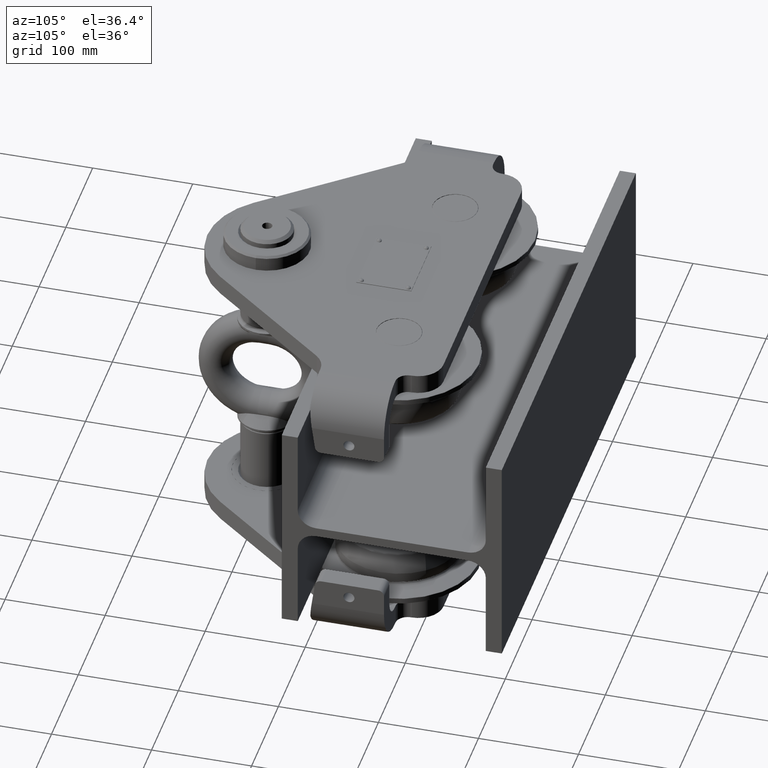
[diagram: clean part render]
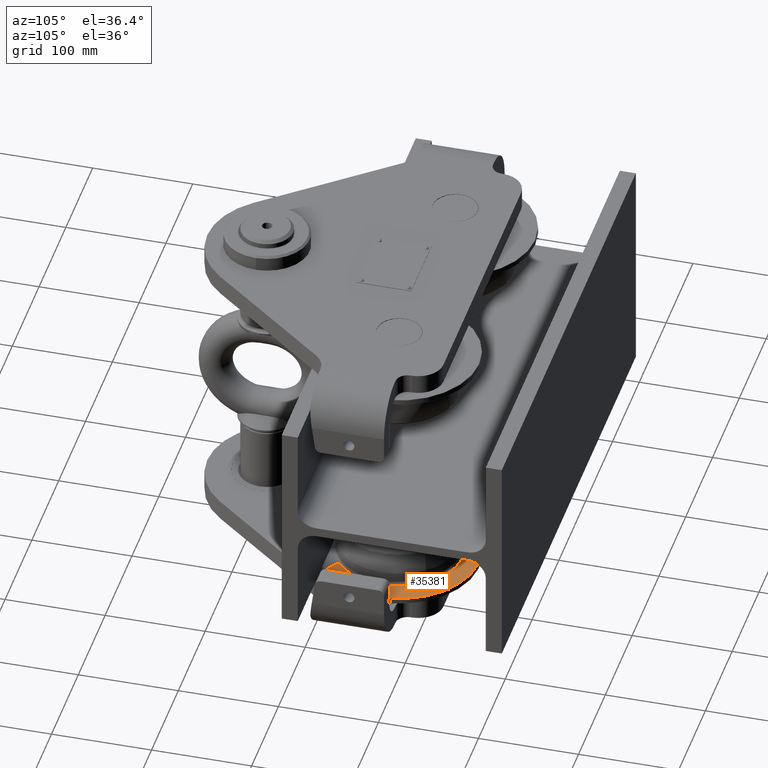
[diagram: same view with one face highlighted and labeled with its STEP entity id]
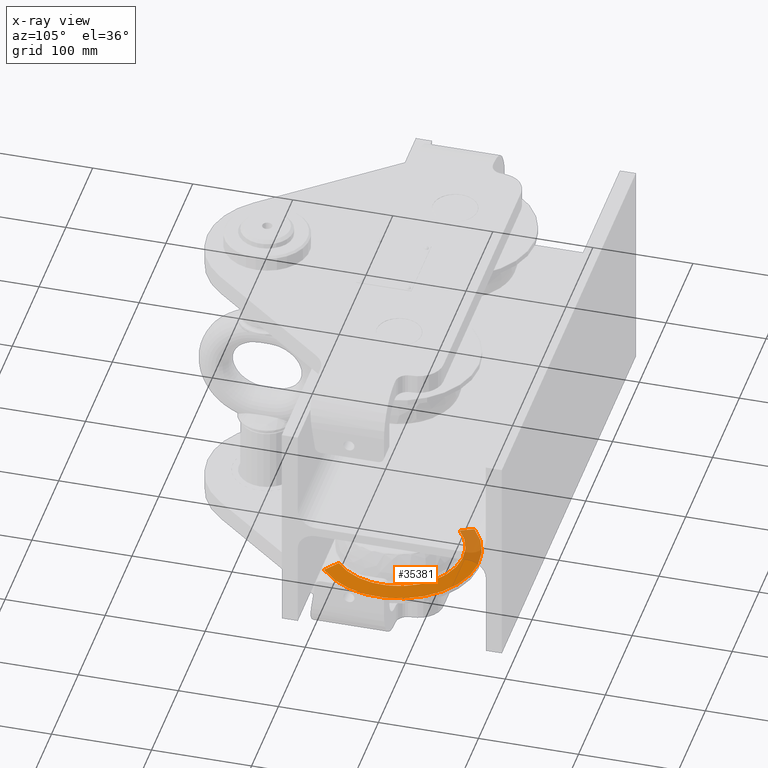
[diagram: x-ray of the same camera — body ghosted, the highlighted face saturated]
A machine part, auxiliary view. The second image highlights one B-rep face of the part: STEP entity #35381.
The next image is the same camera in x-ray: the body ghosted, the highlighted face saturated — about 20% of this face is hidden behind the body in this view.
In plain terms, the highlighted conical surface has half-angle 78 deg.
Its self-contained STEP definition (entity closure, byte-faithful):
#1878 = LINE ( 'NONE', #33968, #7999 ) ;
#4599 = CARTESIAN_POINT ( 'NONE',  ( 104.5000000000000900, -31.49999999999995000, -115.9597846072440200 ) ) ;
#5742 = AXIS2_PLACEMENT_3D ( 'NONE', #4599, #10687, #16728 ) ;
#6066 = CARTESIAN_POINT ( 'NONE',  ( 104.5000000000000700, -31.49999999999995000, -112.6094973562537500 ) ) ;
#7013 = CARTESIAN_POINT ( 'NONE',  ( 155.1602890501097800, -93.10820838872554400, -115.9597846072438900 ) ) ;
#7939 = CARTESIAN_POINT ( 'NONE',  ( 53.83971094989036000, 30.10820838872566100, -115.9597846072441500 ) ) ;
#7966 = DIRECTION ( 'NONE',  ( 2.585664148628561700E-015, 1.224606353822377300E-016, -1.000000000000000000 ) ) ;
#7999 = VECTOR ( 'NONE', #24971, 1000.000000000000200 ) ;
#8022 = CARTESIAN_POINT ( 'NONE',  ( 63.85070314809110700, 17.93379515325039400, -112.6094973562538500 ) ) ;
#8203 = CARTESIAN_POINT ( 'NONE',  ( 104.5000000000000700, -31.49999999999995000, -112.6094973562537500 ) ) ;
#9080 = CIRCLE ( 'NONE', #12148, 64.00051123083419200 ) ;
#9096 = DIRECTION ( 'NONE',  ( 2.585664148628561700E-015, 1.224606353822377300E-016, -1.000000000000000000 ) ) ;
#10687 = DIRECTION ( 'NONE',  ( -2.585664148628561700E-015, -1.224606353822377300E-016, 1.000000000000000000 ) ) ;
#12148 = AXIS2_PLACEMENT_3D ( 'NONE', #8203, #7966, #31817 ) ;
#13351 = VERTEX_POINT ( 'NONE', #7939 ) ;
#13434 = FACE_OUTER_BOUND ( 'NONE', #19906, .T. ) ;
#14775 = EDGE_CURVE ( 'NONE', #15376, #13351, #21589, .T. ) ;
#15376 = VERTEX_POINT ( 'NONE', #22310 ) ;
#16728 = DIRECTION ( 'NONE',  ( 0.6351401898228109500, -0.7723968793773341400, 1.565902377002167100E-015 ) ) ;
#17819 = ORIENTED_EDGE ( 'NONE', *, *, #20800, .T. ) ;
#18418 = EDGE_CURVE ( 'NONE', #26430, #13351, #27112, .T. ) ;
#18961 = ORIENTED_EDGE ( 'NONE', *, *, #38243, .T. ) ;
#19906 = EDGE_LOOP ( 'NONE', ( #18961, #17819, #24124, #33223 ) ) ;
#20442 = VERTEX_POINT ( 'NONE', #25593 ) ;
#20800 = EDGE_CURVE ( 'NONE', #20442, #26430, #1878, .T. ) ;
#21386 = CONICAL_SURFACE ( 'NONE', #29548, 64.00051123083419200, 1.361356816555583600 ) ;
#21589 = LINE ( 'NONE', #8022, #29531 ) ;
#22310 = CARTESIAN_POINT ( 'NONE',  ( 63.85070314809110700, 17.93379515325039400, -112.6094973562538500 ) ) ;
#24124 = ORIENTED_EDGE ( 'NONE', *, *, #18418, .T. ) ;
#24163 = DIRECTION ( 'NONE',  ( -0.6351401898228108400, 0.7723968793773339200, -1.517870916754472400E-015 ) ) ;
#24971 = DIRECTION ( 'NONE',  ( 0.6212608528047975900, -0.7555181543772189200, -0.2079116908177513800 ) ) ;
#25593 = CARTESIAN_POINT ( 'NONE',  ( 145.1492968519090400, -80.93379515325028700, -112.6094973562536600 ) ) ;
#26430 = VERTEX_POINT ( 'NONE', #7013 ) ;
#27112 = CIRCLE ( 'NONE', #5742, 79.76237350724531400 ) ;
#29531 = VECTOR ( 'NONE', #38655, 1000.000000000000200 ) ;
#29548 = AXIS2_PLACEMENT_3D ( 'NONE', #6066, #9096, #24163 ) ;
#31817 = DIRECTION ( 'NONE',  ( -0.6351401898228108400, 0.7723968793773339200, -1.517870916754472400E-015 ) ) ;
#33223 = ORIENTED_EDGE ( 'NONE', *, *, #14775, .F. ) ;
#33968 = CARTESIAN_POINT ( 'NONE',  ( 145.1492968519090100, -80.93379515325028700, -112.6094973562536600 ) ) ;
#35381 = ADVANCED_FACE ( 'NONE', ( #13434 ), #21386, .T. ) ;
#38243 = EDGE_CURVE ( 'NONE', #15376, #20442, #9080, .T. ) ;
#38655 = DIRECTION ( 'NONE',  ( -0.6212608528047964800, 0.7555181543772190300, -0.2079116908177544300 ) ) ;